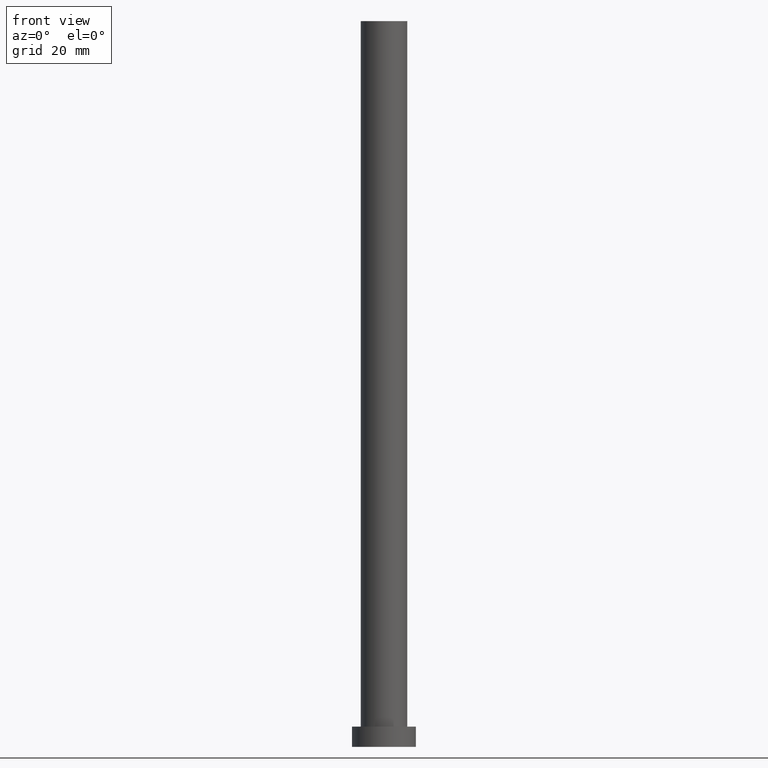
[diagram: clean part render]
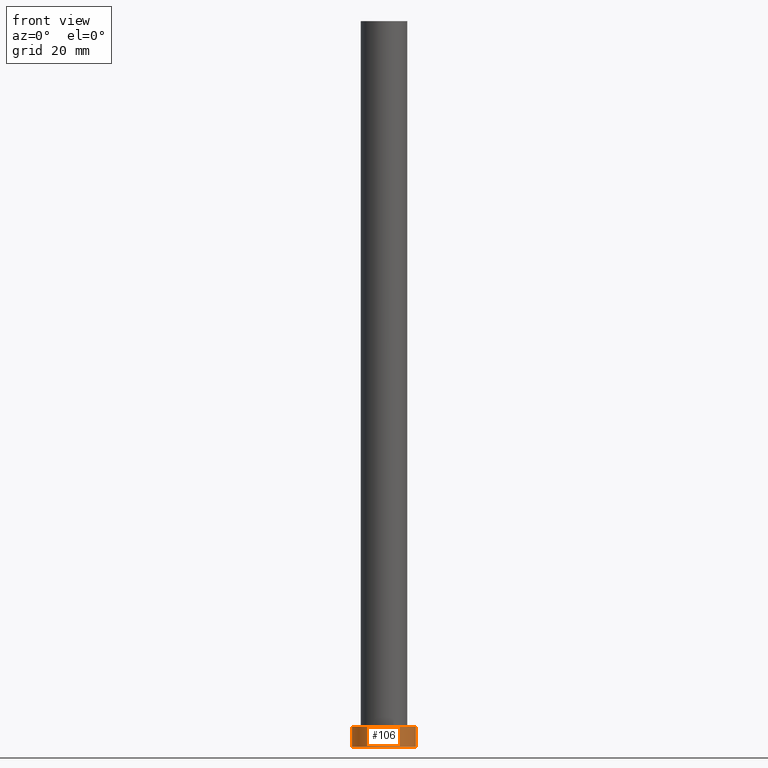
[diagram: same view with one face highlighted and labeled with its STEP entity id]
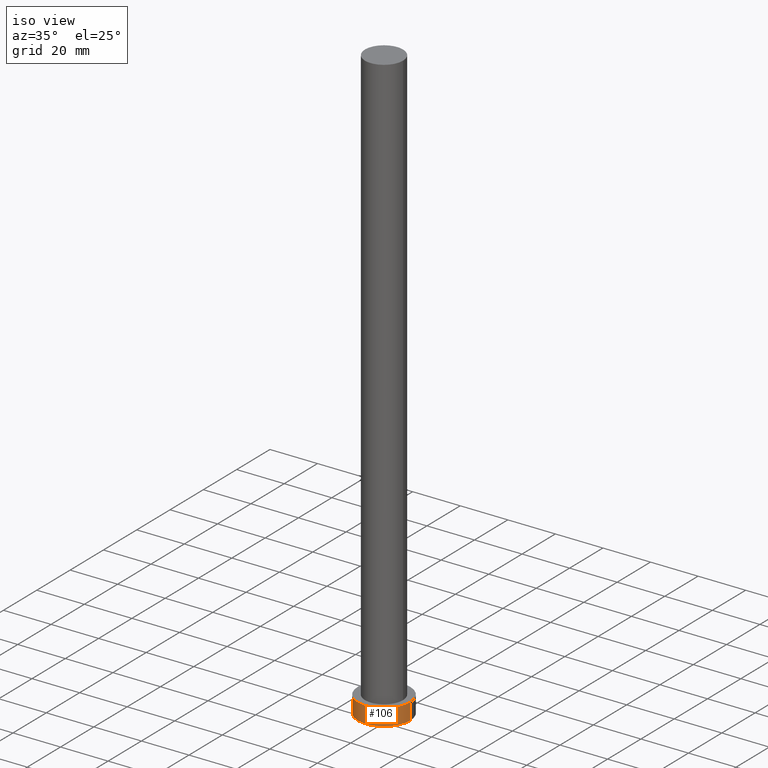
[diagram: same view with one face highlighted and labeled with its STEP entity id]
A machine part, front view. The second image highlights one B-rep face of the part: STEP entity #106.
A second angle (iso view) of the same face is appended — the face is thin or edge-on in the first view.
In plain terms, the highlighted cylindrical surface (edge-blend (fillet) strip) has radius 11 mm, axis along (-0, -0, -1).
Its self-contained STEP definition (entity closure, byte-faithful):
#2 = EDGE_CURVE ( 'NONE', #60, #253, #199, .T. ) ;
#4 = DIRECTION ( 'NONE',  ( -0.000000000000000000, -0.000000000000000000, -1.000000000000000000 ) ) ;
#6 = CYLINDRICAL_SURFACE ( 'NONE', #173, 11.00000000000000000 ) ;
#48 = DIRECTION ( 'NONE',  ( -0.000000000000000000, -0.000000000000000000, -1.000000000000000000 ) ) ;
#50 = CARTESIAN_POINT ( 'NONE',  ( 11.00000000000000000, 1.347111479062088405E-15, 7.000000000000000000 ) ) ;
#53 = CARTESIAN_POINT ( 'NONE',  ( -11.00000000000000000, 0.000000000000000000, 0.000000000000000000 ) ) ;
#60 = VERTEX_POINT ( 'NONE', #66 ) ;
#63 = ORIENTED_EDGE ( 'NONE', *, *, #91, .F. ) ;
#66 = CARTESIAN_POINT ( 'NONE',  ( -11.00000000000000000, 0.000000000000000000, 7.000000000000000000 ) ) ;
#68 = DIRECTION ( 'NONE',  ( 0.000000000000000000, 0.000000000000000000, 1.000000000000000000 ) ) ;
#70 = CARTESIAN_POINT ( 'NONE',  ( 0.000000000000000000, 0.000000000000000000, 7.000000000000000000 ) ) ;
#86 = AXIS2_PLACEMENT_3D ( 'NONE', #184, #68, #171 ) ;
#88 = CARTESIAN_POINT ( 'NONE',  ( 0.000000000000000000, 0.000000000000000000, 0.000000000000000000 ) ) ;
#91 = EDGE_CURVE ( 'NONE', #131, #143, #182, .T. ) ;
#106 = ADVANCED_FACE ( 'NONE', ( #239 ), #6, .T. ) ;
#110 = DIRECTION ( 'NONE',  ( -0.000000000000000000, -0.000000000000000000, -1.000000000000000000 ) ) ;
#116 = VECTOR ( 'NONE', #110, 1000.000000000000000 ) ;
#127 = DIRECTION ( 'NONE',  ( 1.000000000000000000, 0.000000000000000000, 0.000000000000000000 ) ) ;
#131 = VERTEX_POINT ( 'NONE', #50 ) ;
#143 = VERTEX_POINT ( 'NONE', #240 ) ;
#145 = ORIENTED_EDGE ( 'NONE', *, *, #165, .F. ) ;
#151 = DIRECTION ( 'NONE',  ( 0.000000000000000000, 0.000000000000000000, 1.000000000000000000 ) ) ;
#165 = EDGE_CURVE ( 'NONE', #60, #131, #226, .T. ) ;
#171 = DIRECTION ( 'NONE',  ( 1.000000000000000000, 0.000000000000000000, 0.000000000000000000 ) ) ;
#172 = EDGE_CURVE ( 'NONE', #253, #143, #251, .T. ) ;
#173 = AXIS2_PLACEMENT_3D ( 'NONE', #70, #48, #220 ) ;
#179 = VECTOR ( 'NONE', #4, 1000.000000000000000 ) ;
#182 = LINE ( 'NONE', #218, #116 ) ;
#184 = CARTESIAN_POINT ( 'NONE',  ( 0.000000000000000000, 0.000000000000000000, 7.000000000000000000 ) ) ;
#191 = ORIENTED_EDGE ( 'NONE', *, *, #172, .T. ) ;
#199 = LINE ( 'NONE', #223, #179 ) ;
#212 = ORIENTED_EDGE ( 'NONE', *, *, #2, .T. ) ;
#218 = CARTESIAN_POINT ( 'NONE',  ( 11.00000000000000000, 1.347111479062088405E-15, 7.000000000000000000 ) ) ;
#220 = DIRECTION ( 'NONE',  ( -1.000000000000000000, 0.000000000000000000, 0.000000000000000000 ) ) ;
#223 = CARTESIAN_POINT ( 'NONE',  ( -11.00000000000000000, 0.000000000000000000, 7.000000000000000000 ) ) ;
#226 = CIRCLE ( 'NONE', #86, 11.00000000000000000 ) ;
#233 = AXIS2_PLACEMENT_3D ( 'NONE', #88, #151, #127 ) ;
#239 = FACE_OUTER_BOUND ( 'NONE', #252, .T. ) ;
#240 = CARTESIAN_POINT ( 'NONE',  ( 11.00000000000000000, 1.347111479062088405E-15, 0.000000000000000000 ) ) ;
#251 = CIRCLE ( 'NONE', #233, 11.00000000000000000 ) ;
#252 = EDGE_LOOP ( 'NONE', ( #63, #145, #212, #191 ) ) ;
#253 = VERTEX_POINT ( 'NONE', #53 ) ;